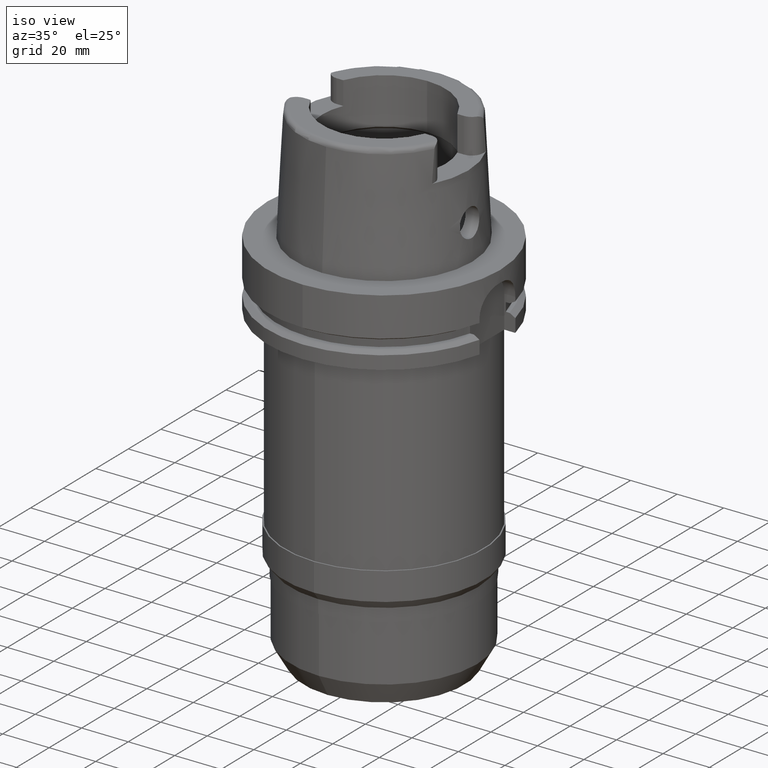
[diagram: clean part render]
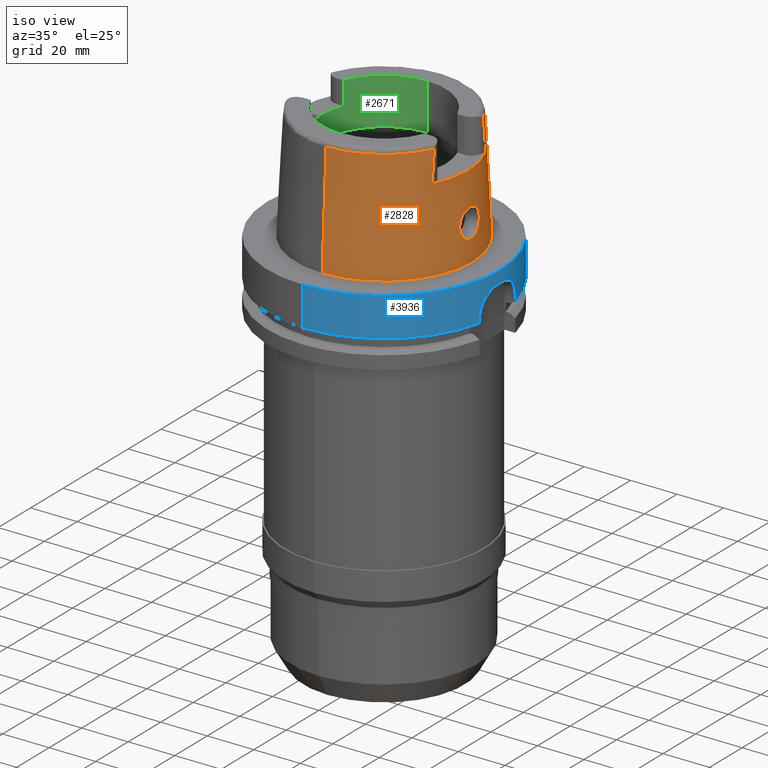
[diagram: same view with three faces highlighted in distinct colors, each labeled with its STEP entity id]
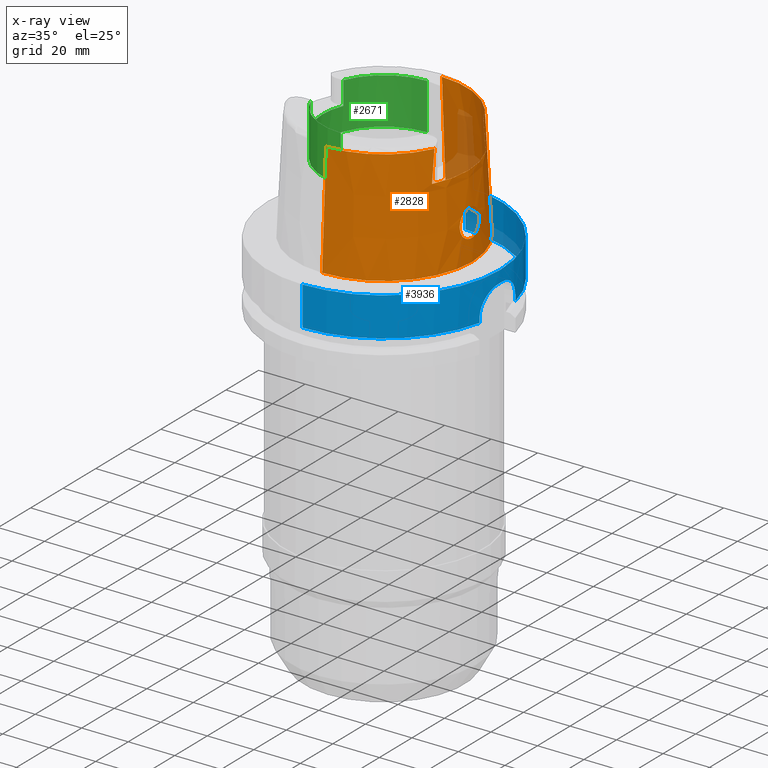
[diagram: x-ray of the same camera — body ghosted, the three highlighted faces saturated]
A machine part, iso view with three faces highlighted in distinct colors.
The next image is the same camera in x-ray (body ghosted, the three faces saturated) — at least one of them is partly hidden behind the body in this view.
Their STEP definitions:

[orange] entity #2828 — the highlighted conical surface has half-angle 2.862 deg.
#268=CARTESIAN_POINT('',(3.225000552017E1,-1.506439831498E1,4.810004147553E1));
#273=CARTESIAN_POINT('',(0.E0,0.E0,4.809987853799E1));
#274=DIRECTION('',(0.E0,0.E0,-1.E0));
#275=DIRECTION('',(9.060280460805E-1,-4.232176505246E-1,0.E0));
#276=AXIS2_PLACEMENT_3D('',#273,#274,#275);
#299=DIRECTION('',(5.154182075151E-5,-4.993927430816E-2,-9.987522546783E-1));
#300=VECTOR('',#299,4.815996991514E1);
#301=CARTESIAN_POINT('',(-2.482252536761E-3,-3.559494263425E1,
4.809987853799E1));
#302=LINE('',#301,#300);
#316=CARTESIAN_POINT('',(3.224999527489E1,1.655287543599E1,3.5E1));
#317=CARTESIAN_POINT('',(3.224999527489E1,1.639226210430E1,3.646677430492E1));
#318=CARTESIAN_POINT('',(3.224999958003E1,1.606837255800E1,3.939292733941E1));
#319=CARTESIAN_POINT('',(3.225000855756E1,1.557203228344E1,4.375938278756E1));
#320=CARTESIAN_POINT('',(3.224998031234E1,1.523513273985E1,4.665592184693E1));
#321=CARTESIAN_POINT('',(3.224998031234E1,1.506460254567E1,4.809931725137E1));
#326=DIRECTION('',(-5.154182075159E-5,4.993927430816E-2,-9.987522546783E-1));
#327=VECTOR('',#326,4.815996991514E1);
#328=CARTESIAN_POINT('',(2.482252536765E-3,3.559494263425E1,4.809987853799E1));
#329=LINE('',#328,#327);
#333=CARTESIAN_POINT('',(3.225000552017E1,-1.506439831498E1,4.810004147553E1));
#334=CARTESIAN_POINT('',(3.225000552017E1,-1.523503287459E1,4.665577822619E1));
#335=CARTESIAN_POINT('',(3.225000026293E1,-1.557219473690E1,4.376011572E1));
#336=CARTESIAN_POINT('',(3.224999079948E1,-1.606856473303E1,3.939344262459E1));
#337=CARTESIAN_POINT('',(3.225002129259E1,-1.639212166417E1,3.646699412941E1));
#338=CARTESIAN_POINT('',(3.225002129259E1,-1.655276054267E1,3.5E1));
#373=CARTESIAN_POINT('',(0.E0,0.E0,3.5E1));
#374=DIRECTION('',(0.E0,0.E0,-1.E0));
#375=DIRECTION('',(8.896561898443E-1,4.566309931135E-1,0.E0));
#376=AXIS2_PLACEMENT_3D('',#373,#374,#375);
#705=CARTESIAN_POINT('',(3.755000165825E1,0.E0,9.E0));
#706=CARTESIAN_POINT('',(3.755000165825E1,-5.179303971219E-1,9.E0));
#707=CARTESIAN_POINT('',(3.752125948215E1,-1.555078132575E0,9.135411704520E0));
#708=CARTESIAN_POINT('',(3.740155016175E1,-3.004531977025E0,9.727867770351E0));
#709=CARTESIAN_POINT('',(3.722757962924E1,-4.268921079165E0,1.068558613407E1));
#710=CARTESIAN_POINT('',(3.703637329459E1,-5.243951436344E0,1.194294480918E1));
#711=CARTESIAN_POINT('',(3.686682188278E1,-5.860702404987E0,1.341938237014E1));
#712=CARTESIAN_POINT('',(3.675238105711E1,-6.068755344601E0,1.499581217525E1));
#713=CARTESIAN_POINT('',(3.670702241829E1,-5.864258722765E0,1.656187870004E1));
#714=CARTESIAN_POINT('',(3.672655870969E1,-5.260433253331E0,1.802590467420E1));
#715=CARTESIAN_POINT('',(3.679089360138E1,-4.301901009761E0,1.928073982336E1));
#716=CARTESIAN_POINT('',(3.687062553257E1,-3.042859834309E0,2.025180783040E1));
#717=CARTESIAN_POINT('',(3.693406996796E1,-1.573584387826E0,2.086180425737E1));
#718=CARTESIAN_POINT('',(3.694998175923E1,-5.243277351043E-1,2.1E1));
#719=CARTESIAN_POINT('',(3.694998175923E1,-1.394597051989E-13,2.1E1));
#756=CARTESIAN_POINT('',(3.694998175923E1,-1.394597051989E-13,2.1E1));
#757=CARTESIAN_POINT('',(3.694998175923E1,5.226180444433E-1,2.1E1));
#758=CARTESIAN_POINT('',(3.693415866465E1,1.569290311498E0,2.086253896665E1));
#759=CARTESIAN_POINT('',(3.687102773779E1,3.035585039826E0,2.025590521730E1));
#760=CARTESIAN_POINT('',(3.679107817824E1,4.299423401144E0,1.928437013112E1));
#761=CARTESIAN_POINT('',(3.672628064417E1,5.264351165892E0,1.802060398943E1));
#762=CARTESIAN_POINT('',(3.670713273140E1,5.866272831972E0,1.655297870860E1));
#763=CARTESIAN_POINT('',(3.675256313617E1,6.067418415918E0,1.499669949795E1));
#764=CARTESIAN_POINT('',(3.686527641975E1,5.864047039587E0,1.34386487E1));
#765=CARTESIAN_POINT('',(3.703215215409E1,5.261463098972E0,1.197514501436E1));
#766=CARTESIAN_POINT('',(3.722294285491E1,4.296952691431E0,1.071272454300E1));
#767=CARTESIAN_POINT('',(3.739936781207E1,3.027181244119E0,9.738740378757E0));
#768=CARTESIAN_POINT('',(3.752129351793E1,1.559266296965E0,9.135186055909E0));
#769=CARTESIAN_POINT('',(3.755000165825E1,5.183610337546E-1,9.E0));
#770=CARTESIAN_POINT('',(3.755000165825E1,0.E0,9.E0));
#2019=CARTESIAN_POINT('',(0.E0,0.E0,1.023181539495E-12));
#2020=DIRECTION('',(0.E0,0.E0,1.E0));
#2021=DIRECTION('',(0.E0,-1.E0,0.E0));
#2022=AXIS2_PLACEMENT_3D('',#2019,#2020,#2021);
#2231=CARTESIAN_POINT('',(0.E0,0.E0,4.809987853799E1));
#2232=DIRECTION('',(0.E0,0.E0,-1.E0));
#2233=DIRECTION('',(0.E0,1.E0,0.E0));
#2234=AXIS2_PLACEMENT_3D('',#2231,#2232,#2233);
#2317=CARTESIAN_POINT('',(0.E0,3.559494289391E1,4.809987853799E1));
#2318=VERTEX_POINT('',#2317);
#2319=CARTESIAN_POINT('',(3.224994093704E1,1.506456999646E1,4.809987853799E1));
#2320=VERTEX_POINT('',#2319);
#2324=VERTEX_POINT('',#268);
#2325=CARTESIAN_POINT('',(1.065814103640E-14,-3.559494289391E1,
4.809987853799E1));
#2326=VERTEX_POINT('',#2325);
#2327=CARTESIAN_POINT('',(0.E0,-3.800001658252E1,6.821210263297E-13));
#2328=VERTEX_POINT('',#2327);
#2329=CARTESIAN_POINT('',(0.E0,3.800001658252E1,1.023181539495E-12));
#2330=VERTEX_POINT('',#2329);
#2333=CARTESIAN_POINT('',(3.225E1,1.655285457013E1,3.5E1));
#2334=CARTESIAN_POINT('',(3.225E1,-1.655285457013E1,3.5E1));
#2335=VERTEX_POINT('',#2333);
#2336=VERTEX_POINT('',#2334);
#2337=VERTEX_POINT('',#705);
#2338=VERTEX_POINT('',#719);
#2802=CARTESIAN_POINT('',(0.E0,0.E0,2.404993926900E1));
#2803=DIRECTION('',(0.E0,0.E0,-1.E0));
#2804=DIRECTION('',(0.E0,-1.E0,0.E0));
#2805=AXIS2_PLACEMENT_3D('',#2802,#2803,#2804);
#2806=CONICAL_SURFACE('',#2805,3.679747973821E1,2.8625E0);
#2808=ORIENTED_EDGE('',*,*,#2807,.F.);
#2810=ORIENTED_EDGE('',*,*,#2809,.T.);
#2812=ORIENTED_EDGE('',*,*,#2811,.F.);
#2813=ORIENTED_EDGE('',*,*,#2787,.T.);
#2815=ORIENTED_EDGE('',*,*,#2814,.F.);
#2816=ORIENTED_EDGE('',*,*,#2783,.F.);
#2817=ORIENTED_EDGE('',*,*,#2755,.F.);
#2819=ORIENTED_EDGE('',*,*,#2818,.T.);
#2820=EDGE_LOOP('',(#2808,#2810,#2812,#2813,#2815,#2816,#2817,#2819));
#2821=FACE_OUTER_BOUND('',#2820,.F.);
#2823=ORIENTED_EDGE('',*,*,#2822,.F.);
#2825=ORIENTED_EDGE('',*,*,#2824,.F.);
#2826=EDGE_LOOP('',(#2823,#2825));
#2827=FACE_BOUND('',#2826,.F.);
#277=CIRCLE('',#276,3.559494289391E1);
#322=B_SPLINE_CURVE_WITH_KNOTS('',3,(#316,#317,#318,#319,#320,#321),
.UNSPECIFIED.,.F.,.F.,(4,1,1,4),(0.E0,3.333333333333E-1,6.666666666667E-1,1.E0),
.UNSPECIFIED.);
#339=B_SPLINE_CURVE_WITH_KNOTS('',3,(#333,#334,#335,#336,#337,#338),
.UNSPECIFIED.,.F.,.F.,(4,1,1,4),(0.E0,3.333333333333E-1,6.666666666667E-1,1.E0),
.UNSPECIFIED.);
#377=CIRCLE('',#376,3.624995854370E1);
#720=B_SPLINE_CURVE_WITH_KNOTS('',3,(#705,#706,#707,#708,#709,#710,#711,#712,
#713,#714,#715,#716,#717,#718,#719),.UNSPECIFIED.,.F.,.F.,(4,1,1,1,1,1,1,1,1,1,
1,1,4),(0.E0,8.333333333333E-2,1.666666666667E-1,2.5E-1,3.333333333333E-1,
4.166666666667E-1,5.E-1,5.833333333333E-1,6.666666666667E-1,7.5E-1,
8.333333333333E-1,9.166666666667E-1,1.E0),.UNSPECIFIED.);
#771=B_SPLINE_CURVE_WITH_KNOTS('',3,(#756,#757,#758,#759,#760,#761,#762,#763,
#764,#765,#766,#767,#768,#769,#770),.UNSPECIFIED.,.F.,.F.,(4,1,1,1,1,1,1,1,1,1,
1,1,4),(0.E0,8.333333333333E-2,1.666666666667E-1,2.5E-1,3.333333333333E-1,
4.166666666667E-1,5.E-1,5.833333333333E-1,6.666666666667E-1,7.5E-1,
8.333333333333E-1,9.166666666667E-1,1.E0),.UNSPECIFIED.);
#2023=CIRCLE('',#2022,3.800001658252E1);
#2235=CIRCLE('',#2234,3.559494289391E1);
#2755=EDGE_CURVE('',#2324,#2326,#277,.T.);
#2783=EDGE_CURVE('',#2326,#2328,#302,.T.);
#2787=EDGE_CURVE('',#2318,#2330,#329,.T.);
#2807=EDGE_CURVE('',#2335,#2336,#377,.T.);
#2809=EDGE_CURVE('',#2335,#2320,#322,.T.);
#2811=EDGE_CURVE('',#2318,#2320,#2235,.T.);
#2814=EDGE_CURVE('',#2328,#2330,#2023,.T.);
#2818=EDGE_CURVE('',#2324,#2336,#339,.T.);
#2822=EDGE_CURVE('',#2337,#2338,#720,.T.);
#2824=EDGE_CURVE('',#2338,#2337,#771,.T.);
#2828=ADVANCED_FACE('',(#2821,#2827),#2806,.T.);

[blue] entity #3936 — the highlighted cylindrical surface (partial cylindrical patch) has radius 50 mm, axis along (0, 0, 1).
#1553=DIRECTION('',(0.E0,2.969006079282E-14,-1.E0));
#1554=VECTOR('',#1553,1.675240473581E1);
#1555=CARTESIAN_POINT('',(0.E0,-5.E1,1.894780628694E-14));
#1556=LINE('',#1555,#1554);
#1605=CARTESIAN_POINT('',(4.877499359303E1,1.1E1,-1.675240473581E1));
#1610=CARTESIAN_POINT('',(0.E0,0.E0,-1.675240473581E1));
#1611=DIRECTION('',(0.E0,0.E0,1.E0));
#1612=DIRECTION('',(9.754998718606E-1,2.2E-1,0.E0));
#1613=AXIS2_PLACEMENT_3D('',#1610,#1611,#1612);
#1754=CARTESIAN_POINT('',(4.998999899980E1,-1.E0,-5.E0));
#1755=CARTESIAN_POINT('',(4.997502962949E1,-1.748318806828E0,-5.E0));
#1756=CARTESIAN_POINT('',(4.991282291674E1,-3.210848708943E0,
-5.162603876517E0));
#1757=CARTESIAN_POINT('',(4.972619797369E1,-5.360542516769E0,
-5.905628433792E0));
#1758=CARTESIAN_POINT('',(4.947833699748E1,-7.276984894272E0,
-7.107269275487E0));
#1759=CARTESIAN_POINT('',(4.921223922111E1,-8.879154896471E0,
-8.706220861718E0));
#1760=CARTESIAN_POINT('',(4.897561538631E1,-1.008542517918E1,
-1.061979061042E1));
#1761=CARTESIAN_POINT('',(4.881248014283E1,-1.083588691229E1,
-1.277872227292E1));
#1762=CARTESIAN_POINT('',(4.877499359303E1,-1.1E1,-1.424723863246E1));
#1763=CARTESIAN_POINT('',(4.877499359303E1,-1.1E1,-1.5E1));
#1768=DIRECTION('',(-5.027793947017E-13,6.690209687563E-14,-1.E0));
#1769=VECTOR('',#1768,1.752404735809E0);
#1770=CARTESIAN_POINT('',(4.877499359303E1,-1.1E1,-1.5E1));
#1771=LINE('',#1770,#1769);
#1775=DIRECTION('',(0.E0,-2.969006079282E-14,-1.E0));
#1776=VECTOR('',#1775,1.675240473581E1);
#1777=CARTESIAN_POINT('',(0.E0,5.E1,1.894780628694E-14));
#1778=LINE('',#1777,#1776);
#1782=DIRECTION('',(4.946700496259E-13,7.095676941355E-14,1.E0));
#1783=VECTOR('',#1782,1.752404735809E0);
#1784=CARTESIAN_POINT('',(4.877499359303E1,1.1E1,-1.675240473581E1));
#1785=LINE('',#1784,#1783);
#1789=CARTESIAN_POINT('',(4.877499359303E1,1.1E1,-1.5E1));
#1790=CARTESIAN_POINT('',(4.877499359303E1,1.1E1,-1.425365513588E1));
#1791=CARTESIAN_POINT('',(4.881185785010E1,1.083857893684E1,-1.279589027067E1));
#1792=CARTESIAN_POINT('',(4.897289371044E1,1.009825143590E1,-1.064845195371E1));
#1793=CARTESIAN_POINT('',(4.920780651826E1,8.903126310453E0,-8.736917024227E0));
#1794=CARTESIAN_POINT('',(4.947350286983E1,7.309291984996E0,-7.133041447315E0));
#1795=CARTESIAN_POINT('',(4.972260453039E1,5.394314866061E0,-5.921156406438E0));
#1796=CARTESIAN_POINT('',(4.991155272931E1,3.234186037440E0,-5.166536640731E0));
#1797=CARTESIAN_POINT('',(4.997484892375E1,1.757352286668E0,-5.E0));
#1798=CARTESIAN_POINT('',(4.998999899980E1,1.E0,-5.E0));
#1803=CARTESIAN_POINT('',(0.E0,0.E0,-5.E0));
#1804=DIRECTION('',(0.E0,0.E0,1.E0));
#1805=DIRECTION('',(9.997999799960E-1,-2.E-2,0.E0));
#1806=AXIS2_PLACEMENT_3D('',#1803,#1804,#1805);
#1857=CARTESIAN_POINT('',(0.E0,0.E0,-1.675240473581E1));
#1858=DIRECTION('',(0.E0,0.E0,1.E0));
#1859=DIRECTION('',(0.E0,-1.E0,0.E0));
#1860=AXIS2_PLACEMENT_3D('',#1857,#1858,#1859);
#2011=CARTESIAN_POINT('',(0.E0,0.E0,5.684341886081E-14));
#2012=DIRECTION('',(0.E0,0.E0,-1.E0));
#2013=DIRECTION('',(0.E0,1.E0,0.E0));
#2014=AXIS2_PLACEMENT_3D('',#2011,#2012,#2013);
#2568=CARTESIAN_POINT('',(0.E0,-5.E1,-1.675240473581E1));
#2569=VERTEX_POINT('',#2568);
#2570=CARTESIAN_POINT('',(4.877499359303E1,-1.1E1,-1.675240473581E1));
#2571=VERTEX_POINT('',#2570);
#2572=VERTEX_POINT('',#1605);
#2573=CARTESIAN_POINT('',(0.E0,5.E1,-1.675240473581E1));
#2574=VERTEX_POINT('',#2573);
#2576=CARTESIAN_POINT('',(0.E0,5.E1,1.894780628694E-14));
#2577=VERTEX_POINT('',#2576);
#2578=CARTESIAN_POINT('',(0.E0,-5.E1,5.684341886081E-14));
#2579=VERTEX_POINT('',#2578);
#2582=CARTESIAN_POINT('',(4.998999899980E1,-1.E0,-5.E0));
#2583=CARTESIAN_POINT('',(4.998999899980E1,1.E0,-5.E0));
#2584=VERTEX_POINT('',#2582);
#2585=VERTEX_POINT('',#2583);
#2586=VERTEX_POINT('',#1763);
#2587=CARTESIAN_POINT('',(4.877499359303E1,1.1E1,-1.5E1));
#2588=VERTEX_POINT('',#2587);
#3914=CARTESIAN_POINT('',(0.E0,0.E0,-1.7617E2));
#3915=DIRECTION('',(0.E0,0.E0,1.E0));
#3916=DIRECTION('',(0.E0,1.E0,0.E0));
#3917=AXIS2_PLACEMENT_3D('',#3914,#3915,#3916);
#3918=CYLINDRICAL_SURFACE('',#3917,5.E1);
#3920=ORIENTED_EDGE('',*,*,#3919,.F.);
#3922=ORIENTED_EDGE('',*,*,#3921,.T.);
#3923=ORIENTED_EDGE('',*,*,#3664,.T.);
#3925=ORIENTED_EDGE('',*,*,#3924,.F.);
#3926=ORIENTED_EDGE('',*,*,#3820,.F.);
#3928=ORIENTED_EDGE('',*,*,#3927,.F.);
#3929=ORIENTED_EDGE('',*,*,#3816,.T.);
#3930=ORIENTED_EDGE('',*,*,#3846,.F.);
#3931=ORIENTED_EDGE('',*,*,#3612,.T.);
#3933=ORIENTED_EDGE('',*,*,#3932,.T.);
#3934=EDGE_LOOP('',(#3920,#3922,#3923,#3925,#3926,#3928,#3929,#3930,#3931,
#3933));
#3935=FACE_OUTER_BOUND('',#3934,.F.);
#1614=CIRCLE('',#1613,5.E1);
#1764=B_SPLINE_CURVE_WITH_KNOTS('',3,(#1754,#1755,#1756,#1757,#1758,#1759,#1760,
#1761,#1762,#1763),.UNSPECIFIED.,.F.,.F.,(4,1,1,1,1,1,1,4),(0.E0,
1.428571428571E-1,2.857142857143E-1,4.285714285714E-1,5.714285714286E-1,
7.142857142857E-1,8.571428571429E-1,1.E0),.UNSPECIFIED.);
#1799=B_SPLINE_CURVE_WITH_KNOTS('',3,(#1789,#1790,#1791,#1792,#1793,#1794,#1795,
#1796,#1797,#1798),.UNSPECIFIED.,.F.,.F.,(4,1,1,1,1,1,1,4),(0.E0,
1.428571428571E-1,2.857142857143E-1,4.285714285714E-1,5.714285714286E-1,
7.142857142857E-1,8.571428571429E-1,1.E0),.UNSPECIFIED.);
#1807=CIRCLE('',#1806,5.E1);
#1861=CIRCLE('',#1860,5.E1);
#2015=CIRCLE('',#2014,5.E1);
#3612=EDGE_CURVE('',#2572,#2588,#1785,.T.);
#3664=EDGE_CURVE('',#2586,#2571,#1771,.T.);
#3816=EDGE_CURVE('',#2577,#2574,#1778,.T.);
#3820=EDGE_CURVE('',#2579,#2569,#1556,.T.);
#3846=EDGE_CURVE('',#2572,#2574,#1614,.T.);
#3919=EDGE_CURVE('',#2584,#2585,#1807,.T.);
#3921=EDGE_CURVE('',#2584,#2586,#1764,.T.);
#3924=EDGE_CURVE('',#2569,#2571,#1861,.T.);
#3927=EDGE_CURVE('',#2577,#2579,#2015,.T.);
#3932=EDGE_CURVE('',#2588,#2585,#1799,.T.);
#3936=ADVANCED_FACE('',(#3935),#3918,.T.);

[green] entity #2671 — the highlighted cylindrical surface (partial cylindrical patch) has radius 26.5 mm, axis along (0, 0, 1).
#50=CARTESIAN_POINT('',(0.E0,0.E0,5.E1));
#51=DIRECTION('',(0.E0,0.E0,1.E0));
#52=DIRECTION('',(0.E0,1.E0,0.E0));
#53=AXIS2_PLACEMENT_3D('',#50,#51,#52);
#79=DIRECTION('',(0.E0,0.E0,1.E0));
#80=VECTOR('',#79,1.E1);
#81=CARTESIAN_POINT('',(-2.453670515778E1,1.001E1,4.E1));
#82=LINE('',#81,#80);
#86=DIRECTION('',(0.E0,4.370575506605E-14,1.E0));
#87=VECTOR('',#86,1.999662432703E1);
#88=CARTESIAN_POINT('',(0.E0,-2.65E1,3.000337567297E1));
#89=LINE('',#88,#87);
#93=DIRECTION('',(0.E0,0.E0,-1.E0));
#94=VECTOR('',#93,1.E1);
#95=CARTESIAN_POINT('',(-2.453670515778E1,-1.001E1,5.E1));
#96=LINE('',#95,#94);
#100=CARTESIAN_POINT('',(0.E0,0.E0,4.E1));
#101=DIRECTION('',(0.E0,0.E0,1.E0));
#102=DIRECTION('',(-9.259134021805E-1,3.777358490566E-1,0.E0));
#103=AXIS2_PLACEMENT_3D('',#100,#101,#102);
#175=CARTESIAN_POINT('',(0.E0,0.E0,5.E1));
#176=DIRECTION('',(0.E0,0.E0,1.E0));
#177=DIRECTION('',(-9.259134021805E-1,-3.777358490566E-1,0.E0));
#178=AXIS2_PLACEMENT_3D('',#175,#176,#177);
#410=DIRECTION('',(0.E0,-4.370575506605E-14,1.E0));
#411=VECTOR('',#410,1.999662432703E1);
#412=CARTESIAN_POINT('',(0.E0,2.65E1,3.000337567297E1));
#413=LINE('',#412,#411);
#483=CARTESIAN_POINT('',(0.E0,0.E0,3.000337567297E1));
#484=DIRECTION('',(0.E0,0.E0,-1.E0));
#485=DIRECTION('',(0.E0,-1.E0,0.E0));
#486=AXIS2_PLACEMENT_3D('',#483,#484,#485);
#2275=CARTESIAN_POINT('',(0.E0,2.65E1,5.E1));
#2276=VERTEX_POINT('',#2275);
#2277=CARTESIAN_POINT('',(-2.453670515778E1,1.001E1,5.E1));
#2278=VERTEX_POINT('',#2277);
#2283=CARTESIAN_POINT('',(-2.453670515778E1,-1.001E1,5.E1));
#2284=VERTEX_POINT('',#2283);
#2285=CARTESIAN_POINT('',(0.E0,-2.65E1,5.E1));
#2286=VERTEX_POINT('',#2285);
#2299=CARTESIAN_POINT('',(-2.453670515778E1,1.001E1,4.E1));
#2300=VERTEX_POINT('',#2299);
#2301=CARTESIAN_POINT('',(-2.453670515778E1,-1.001E1,4.E1));
#2302=VERTEX_POINT('',#2301);
#2303=CARTESIAN_POINT('',(0.E0,2.65E1,3.000337567297E1));
#2304=VERTEX_POINT('',#2303);
#2305=CARTESIAN_POINT('',(0.E0,-2.65E1,3.000337567297E1));
#2306=VERTEX_POINT('',#2305);
#2650=CARTESIAN_POINT('',(0.E0,0.E0,-1.7617E2));
#2651=DIRECTION('',(0.E0,0.E0,1.E0));
#2652=DIRECTION('',(0.E0,1.E0,0.E0));
#2653=AXIS2_PLACEMENT_3D('',#2650,#2651,#2652);
#2654=CYLINDRICAL_SURFACE('',#2653,2.65E1);
#2656=ORIENTED_EDGE('',*,*,#2655,.F.);
#2657=ORIENTED_EDGE('',*,*,#2642,.T.);
#2658=ORIENTED_EDGE('',*,*,#2612,.F.);
#2660=ORIENTED_EDGE('',*,*,#2659,.F.);
#2662=ORIENTED_EDGE('',*,*,#2661,.F.);
#2664=ORIENTED_EDGE('',*,*,#2663,.T.);
#2666=ORIENTED_EDGE('',*,*,#2665,.F.);
#2668=ORIENTED_EDGE('',*,*,#2667,.T.);
#2669=EDGE_LOOP('',(#2656,#2657,#2658,#2660,#2662,#2664,#2666,#2668));
#2670=FACE_OUTER_BOUND('',#2669,.F.);
#54=CIRCLE('',#53,2.65E1);
#104=CIRCLE('',#103,2.65E1);
#179=CIRCLE('',#178,2.65E1);
#487=CIRCLE('',#486,2.65E1);
#2612=EDGE_CURVE('',#2276,#2278,#54,.T.);
#2642=EDGE_CURVE('',#2300,#2278,#82,.T.);
#2655=EDGE_CURVE('',#2300,#2302,#104,.T.);
#2659=EDGE_CURVE('',#2304,#2276,#413,.T.);
#2661=EDGE_CURVE('',#2306,#2304,#487,.T.);
#2663=EDGE_CURVE('',#2306,#2286,#89,.T.);
#2665=EDGE_CURVE('',#2284,#2286,#179,.T.);
#2667=EDGE_CURVE('',#2284,#2302,#96,.T.);
#2671=ADVANCED_FACE('',(#2670),#2654,.F.);